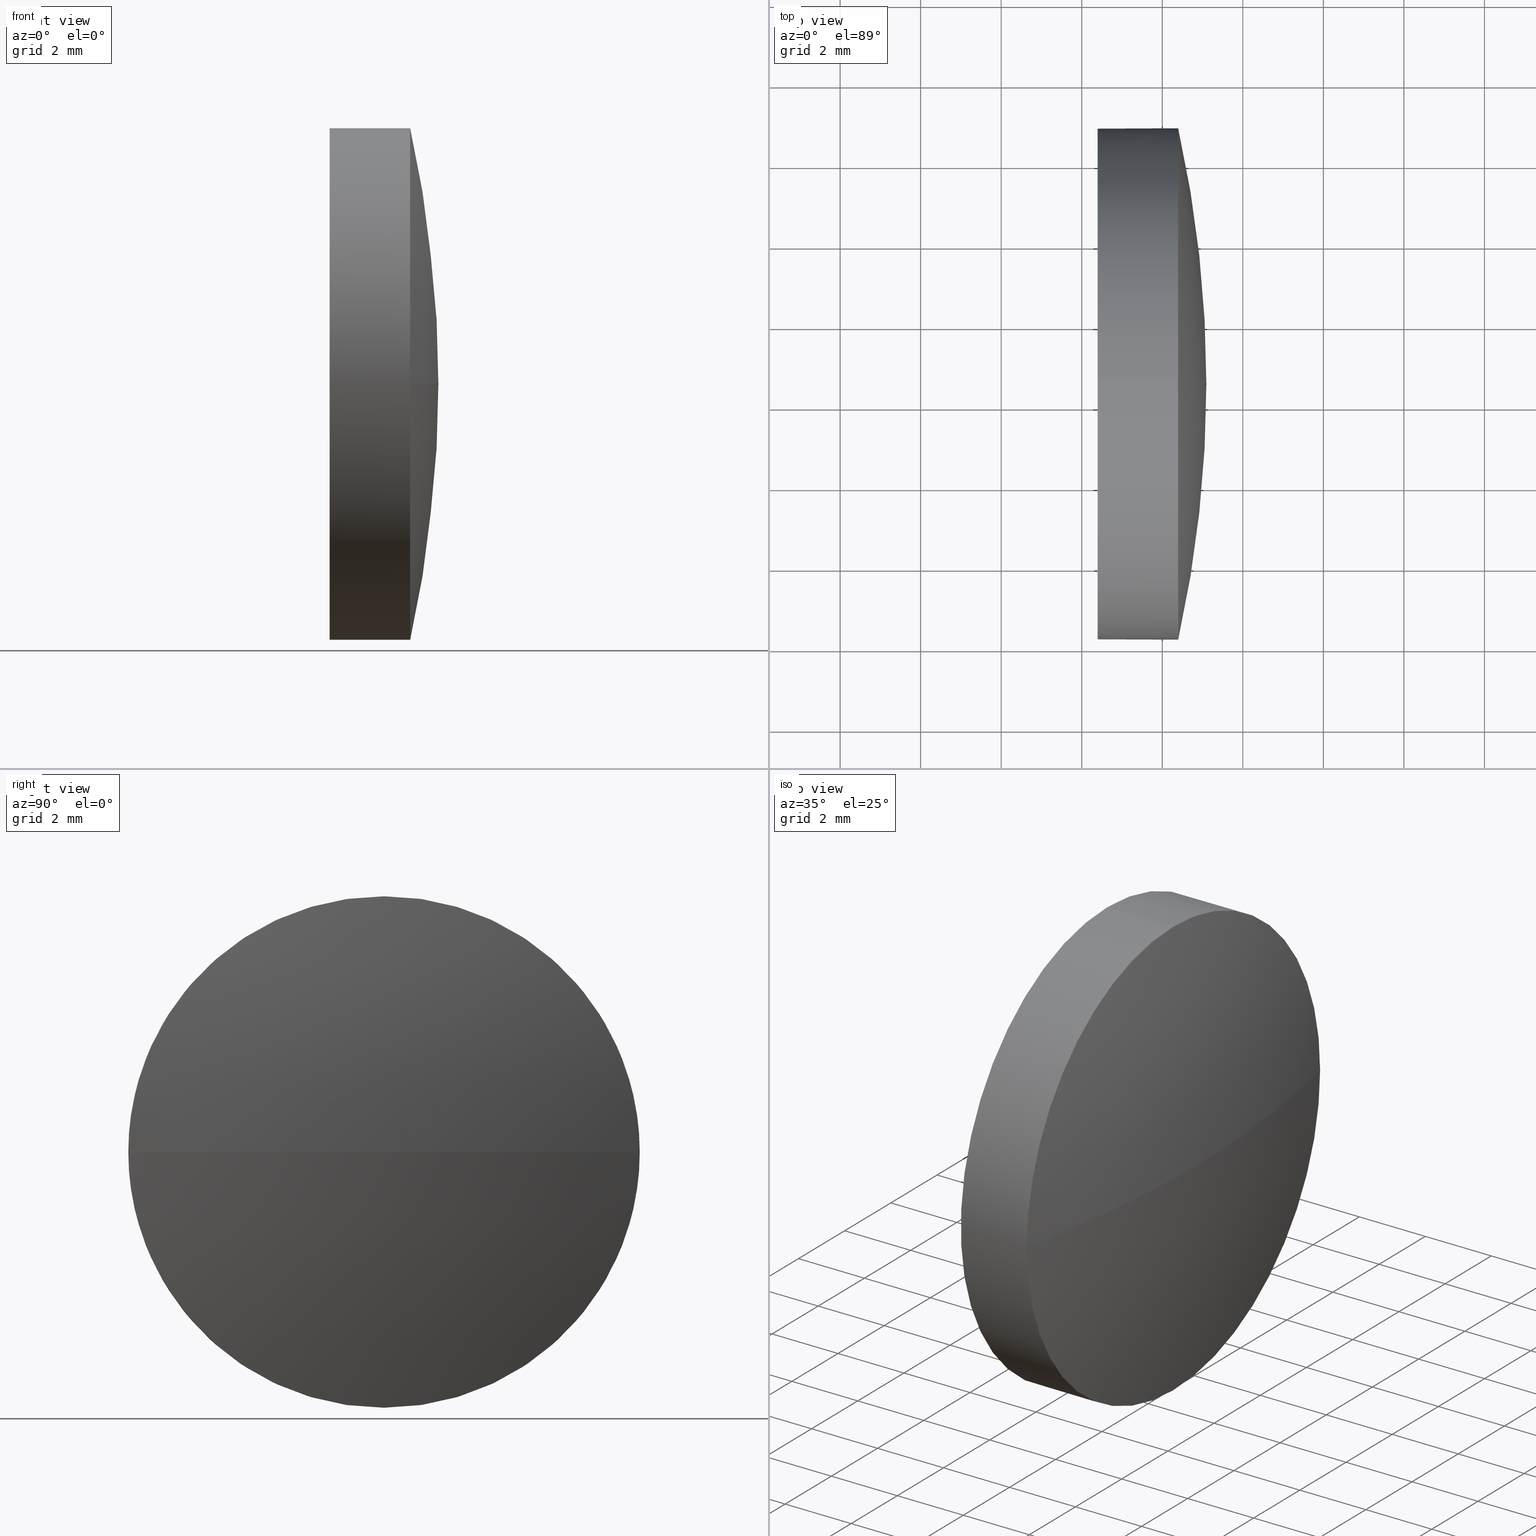
[diagram: canonical four-view strip — front | top / right | iso, engineering-drawing reading convention]
A machine part, canonical four-view strip (front | top / right | iso — engineering-drawing reading convention). The complete STEP part file that produces these views, byte-faithful:
ISO-10303-21;
HEADER;
FILE_DESCRIPTION (( 'STEP AP214' ),
    '1' );
FILE_NAME ('100456.STEP',
    '2019-06-11T01:30:40',
    ( '' ),
    ( '' ),
    'SwSTEP 2.0',
    'SolidWorks 2016',
    '' );
FILE_SCHEMA (( 'AUTOMOTIVE_DESIGN' ));
ENDSEC;

DATA;
#1 = EDGE_CURVE ( 'NONE', #74, #85, #34, .T. ) ;
#2 = CIRCLE ( 'NONE', #148, 6.349999999999994300 ) ;
#3 = CIRCLE ( 'NONE', #124, 6.349999999999994300 ) ;
#4 = DIRECTION ( 'NONE',  ( -1.000000000000000000, -0.0000000000000000000, -0.0000000000000000000 ) ) ;
#5 = CIRCLE ( 'NONE', #137, 6.349999999999994300 ) ;
#6 = EDGE_LOOP ( 'NONE', ( #37, #98 ) ) ;
#7 = EDGE_CURVE ( 'NONE', #129, #14, #152, .T. ) ;
#8 = CARTESIAN_POINT ( 'NONE',  ( 456.1343835801833400, 88.53423358317982700, 0.0000000000000000000 ) ) ;
#9 = UNCERTAINTY_MEASURE_WITH_UNIT (LENGTH_MEASURE( 1.000000000000000100E-005 ), #141, 'distance_accuracy_value', 'NONE');
#10 = CARTESIAN_POINT ( 'NONE',  ( 431.9431290117520900, 88.53423358317981200, 0.0000000000000000000 ) ) ;
#11 = CARTESIAN_POINT ( 'NONE',  ( 460.3949147260378300, 88.53423358317982700, 0.0000000000000000000 ) ) ;
#12 = DIRECTION ( 'NONE',  ( 0.0000000000000000000, 0.0000000000000000000, -1.000000000000000000 ) ) ;
#13 = DIRECTION ( 'NONE',  ( -1.000000000000000000, -0.0000000000000000000, -0.0000000000000000000 ) ) ;
#14 = VERTEX_POINT ( 'NONE', #61 ) ;
#15 = ORIENTED_EDGE ( 'NONE', *, *, #41, .T. ) ;
#16 = ORIENTED_EDGE ( 'NONE', *, *, #114, .F. ) ;
#17 = PRODUCT_DEFINITION_SHAPE ( 'NONE', 'NONE',  #178 ) ;
#18 = DIRECTION ( 'NONE',  ( -1.000000000000000000, -0.0000000000000000000, -0.0000000000000000000 ) ) ;
#19 = ORIENTED_EDGE ( 'NONE', *, *, #131, .F. ) ;
#20 = AXIS2_PLACEMENT_3D ( 'NONE', #64, #162, #50 ) ;
#21 = MECHANICAL_DESIGN_GEOMETRIC_PRESENTATION_REPRESENTATION (  '', ( #77 ), #172 ) ;
#22 = ADVANCED_FACE ( 'NONE', ( #81 ), #68, .T. ) ;
#23 = MANIFOLD_SOLID_BREP ( '��ת1', #52 ) ;
#24 = DIRECTION ( 'NONE',  ( -1.000000000000000000, -0.0000000000000000000, -0.0000000000000000000 ) ) ;
#25 = ADVANCED_FACE ( 'NONE', ( #88 ), #45, .T. ) ;
#26 = CYLINDRICAL_SURFACE ( 'NONE', #70, 6.349999999999994300 ) ;
#27 = DIRECTION ( 'NONE',  ( -0.0000000000000000000, 0.0000000000000000000, -1.000000000000000000 ) ) ;
#28 = DIRECTION ( 'NONE',  ( 0.0000000000000000000, 0.0000000000000000000, 1.000000000000000000 ) ) ;
#29 = COLOUR_RGB ( '',1.000000000000000000, 1.000000000000000000, 1.000000000000000000 ) ;
#30 = VERTEX_POINT ( 'NONE', #111 ) ;
#31 = DIRECTION ( 'NONE',  ( -1.000000000000000000, -0.0000000000000000000, -0.0000000000000000000 ) ) ;
#32 = EDGE_CURVE ( 'NONE', #135, #30, #176, .T. ) ;
#33 = AXIS2_PLACEMENT_3D ( 'NONE', #180, #18, #144 ) ;
#34 = LINE ( 'NONE', #146, #53 ) ;
#35 = SURFACE_SIDE_STYLE ('',( #123 ) ) ;
#36 = CARTESIAN_POINT ( 'NONE',  ( 456.1343835801833400, 88.53423358317982700, 6.349999999999994300 ) ) ;
#37 = ORIENTED_EDGE ( 'NONE', *, *, #164, .T. ) ;
#38 =( NAMED_UNIT ( * ) SI_UNIT ( $, .STERADIAN. ) SOLID_ANGLE_UNIT ( ) );
#39 = DIRECTION ( 'NONE',  ( -0.0000000000000000000, 0.0000000000000000000, 1.000000000000000000 ) ) ;
#40 = PRESENTATION_STYLE_ASSIGNMENT (( #154 ) ) ;
#41 = EDGE_CURVE ( 'NONE', #30, #14, #57, .T. ) ;
#42 =( GEOMETRIC_REPRESENTATION_CONTEXT ( 3 ) GLOBAL_UNCERTAINTY_ASSIGNED_CONTEXT ( ( #87 ) ) GLOBAL_UNIT_ASSIGNED_CONTEXT ( ( #140, #104, #38 ) ) REPRESENTATION_CONTEXT ( 'NONE', 'WORKASPACE' ) );
#43 = CARTESIAN_POINT ( 'NONE',  ( 431.9431290117520900, 88.53423358317981200, 0.0000000000000000000 ) ) ;
#44 = ADVANCED_FACE ( 'NONE', ( #62 ), #65, .T. ) ;
#45 = CYLINDRICAL_SURFACE ( 'NONE', #89, 6.349999999999994300 ) ;
#46 = CARTESIAN_POINT ( 'NONE',  ( 431.9431290117520900, 88.53423358317981200, 0.0000000000000000000 ) ) ;
#47 = CARTESIAN_POINT ( 'NONE',  ( 458.3949147260378300, 88.53423358317982700, 0.0000000000000000000 ) ) ;
#48 = EDGE_CURVE ( 'NONE', #129, #135, #166, .T. ) ;
#49 = AXIS2_PLACEMENT_3D ( 'NONE', #80, #159, #12 ) ;
#50 = DIRECTION ( 'NONE',  ( 0.0000000000000000000, 0.0000000000000000000, 1.000000000000000000 ) ) ;
#51 = ADVANCED_BREP_SHAPE_REPRESENTATION ( '100456', ( #23, #83 ), #42 ) ;
#52 = CLOSED_SHELL ( 'NONE', ( #184, #22, #44, #25, #109 ) ) ;
#53 = VECTOR ( 'NONE', #24, 1000.000000000000000 ) ;
#54 = ORIENTED_EDGE ( 'NONE', *, *, #48, .T. ) ;
#55 = AXIS2_PLACEMENT_3D ( 'NONE', #46, #95, #66 ) ;
#56 = PRODUCT_CONTEXT ( 'NONE', #142, 'mechanical' ) ;
#57 = CIRCLE ( 'NONE', #20, 6.349999999999994300 ) ;
#58 =( NAMED_UNIT ( * ) PLANE_ANGLE_UNIT ( ) SI_UNIT ( $, .RADIAN. ) );
#59 = FILL_AREA_STYLE_COLOUR ( '', #71 ) ;
#60 = ORIENTED_EDGE ( 'NONE', *, *, #114, .T. ) ;
#61 = CARTESIAN_POINT ( 'NONE',  ( 460.3949147260378300, 94.88423358317979300, 0.0000000000000000000 ) ) ;
#62 = FACE_OUTER_BOUND ( 'NONE', #125, .T. ) ;
#63 = PLANE ( 'NONE',  #49 ) ;
#64 = CARTESIAN_POINT ( 'NONE',  ( 460.3949147260378300, 88.53423358317982700, 0.0000000000000000000 ) ) ;
#65 = SPHERICAL_SURFACE ( 'NONE', #108, 29.15178571428574000 ) ;
#66 = DIRECTION ( 'NONE',  ( 0.0000000000000000000, 1.000000000000000000, 1.224646799147353200E-016 ) ) ;
#67 = MECHANICAL_DESIGN_GEOMETRIC_PRESENTATION_REPRESENTATION (  '', ( #76 ), #100 ) ;
#68 = SPHERICAL_SURFACE ( 'NONE', #82, 29.15178571428574000 ) ;
#69 = EDGE_CURVE ( 'NONE', #14, #74, #2, .T. ) ;
#70 = AXIS2_PLACEMENT_3D ( 'NONE', #72, #4, #126 ) ;
#71 = COLOUR_RGB ( '',1.000000000000000000, 1.000000000000000000, 1.000000000000000000 ) ;
#72 = CARTESIAN_POINT ( 'NONE',  ( 456.1343835801833400, 88.53423358317982700, 0.0000000000000000000 ) ) ;
#73 = CARTESIAN_POINT ( 'NONE',  ( 458.3949147260378300, 88.53423358317982700, 6.349999999999994300 ) ) ;
#74 = VERTEX_POINT ( 'NONE', #96 ) ;
#75 = CARTESIAN_POINT ( 'NONE',  ( 431.9431290117520900, 88.53423358317981200, 0.0000000000000000000 ) ) ;
#76 = STYLED_ITEM ( 'NONE', ( #84 ), #23 ) ;
#77 = STYLED_ITEM ( 'NONE', ( #40 ), #51 ) ;
#78 =( NAMED_UNIT ( * ) SI_UNIT ( $, .STERADIAN. ) SOLID_ANGLE_UNIT ( ) );
#79 = DIRECTION ( 'NONE',  ( -0.0000000000000000000, 0.0000000000000000000, -1.000000000000000000 ) ) ;
#80 = CARTESIAN_POINT ( 'NONE',  ( 458.3949147260378300, 88.53423358317982700, 0.0000000000000000000 ) ) ;
#81 = FACE_OUTER_BOUND ( 'NONE', #112, .T. ) ;
#82 = AXIS2_PLACEMENT_3D ( 'NONE', #75, #79, #182 ) ;
#83 = AXIS2_PLACEMENT_3D ( 'NONE', #179, #118, #127 ) ;
#84 = PRESENTATION_STYLE_ASSIGNMENT (( #120 ) ) ;
#85 = VERTEX_POINT ( 'NONE', #186 ) ;
#86 = AXIS2_PLACEMENT_3D ( 'NONE', #43, #39, #157 ) ;
#87 = UNCERTAINTY_MEASURE_WITH_UNIT (LENGTH_MEASURE( 1.000000000000000100E-005 ), #140, 'distance_accuracy_value', 'NONE');
#88 = FACE_OUTER_BOUND ( 'NONE', #91, .T. ) ;
#89 = AXIS2_PLACEMENT_3D ( 'NONE', #8, #173, #93 ) ;
#90 = PRODUCT_DEFINITION_FORMATION_WITH_SPECIFIED_SOURCE ( '�κ�', '', #163, .NOT_KNOWN. ) ;
#91 = EDGE_LOOP ( 'NONE', ( #115, #60, #181, #165, #19 ) ) ;
#92 = FILL_AREA_STYLE ('',( #106 ) ) ;
#93 = DIRECTION ( 'NONE',  ( 0.0000000000000000000, 0.0000000000000000000, 1.000000000000000000 ) ) ;
#94 = ORIENTED_EDGE ( 'NONE', *, *, #48, .F. ) ;
#95 = DIRECTION ( 'NONE',  ( 0.0000000000000000000, 1.224646799147353200E-016, -1.000000000000000000 ) ) ;
#96 = CARTESIAN_POINT ( 'NONE',  ( 460.3949147260378300, 88.53423358317982700, -6.349999999999994300 ) ) ;
#97 = ORIENTED_EDGE ( 'NONE', *, *, #41, .F. ) ;
#98 = ORIENTED_EDGE ( 'NONE', *, *, #131, .T. ) ;
#99 = ORIENTED_EDGE ( 'NONE', *, *, #69, .T. ) ;
#100 =( GEOMETRIC_REPRESENTATION_CONTEXT ( 3 ) GLOBAL_UNCERTAINTY_ASSIGNED_CONTEXT ( ( #138 ) ) GLOBAL_UNIT_ASSIGNED_CONTEXT ( ( #158, #130, #78 ) ) REPRESENTATION_CONTEXT ( 'NONE', 'WORKASPACE' ) );
#101 = ORIENTED_EDGE ( 'NONE', *, *, #69, .F. ) ;
#102 = AXIS2_PLACEMENT_3D ( 'NONE', #11, #13, #147 ) ;
#103 = LINE ( 'NONE', #36, #128 ) ;
#104 =( NAMED_UNIT ( * ) PLANE_ANGLE_UNIT ( ) SI_UNIT ( $, .RADIAN. ) );
#105 = APPLICATION_CONTEXT ( 'automotive_design' ) ;
#106 = FILL_AREA_STYLE_COLOUR ( '', #29 ) ;
#107 = SURFACE_SIDE_STYLE ('',( #116 ) ) ;
#108 = AXIS2_PLACEMENT_3D ( 'NONE', #10, #27, #174 ) ;
#109 = ADVANCED_FACE ( 'NONE', ( #143 ), #63, .F. ) ;
#110 = PRODUCT_RELATED_PRODUCT_CATEGORY ( 'part', '', ( #163 ) ) ;
#111 = CARTESIAN_POINT ( 'NONE',  ( 460.3949147260378300, 88.53423358317982700, 6.349999999999994300 ) ) ;
#112 = EDGE_LOOP ( 'NONE', ( #145, #54, #16, #101 ) ) ;
#113 = CARTESIAN_POINT ( 'NONE',  ( 460.3949147260378300, 88.53423358317982700, 0.0000000000000000000 ) ) ;
#114 = EDGE_CURVE ( 'NONE', #74, #135, #3, .T. ) ;
#115 = ORIENTED_EDGE ( 'NONE', *, *, #1, .F. ) ;
#116 = SURFACE_STYLE_FILL_AREA ( #92 ) ;
#117 = APPLICATION_PROTOCOL_DEFINITION ( 'draft international standard', 'automotive_design', 1998, #142 ) ;
#118 = DIRECTION ( 'NONE',  ( 0.0000000000000000000, 0.0000000000000000000, 1.000000000000000000 ) ) ;
#119 = EDGE_LOOP ( 'NONE', ( #99, #183, #139, #155, #15 ) ) ;
#120 = SURFACE_STYLE_USAGE ( .BOTH. , #107 ) ;
#121 = SHAPE_DEFINITION_REPRESENTATION ( #17, #51 ) ;
#122 = PRESENTATION_LAYER_ASSIGNMENT (  '', '', ( #76 ) ) ;
#123 = SURFACE_STYLE_FILL_AREA ( #169 ) ;
#124 = AXIS2_PLACEMENT_3D ( 'NONE', #150, #31, #132 ) ;
#125 = EDGE_LOOP ( 'NONE', ( #94, #134, #97, #171 ) ) ;
#126 = DIRECTION ( 'NONE',  ( 0.0000000000000000000, 0.0000000000000000000, 1.000000000000000000 ) ) ;
#127 = DIRECTION ( 'NONE',  ( 1.000000000000000000, 0.0000000000000000000, 0.0000000000000000000 ) ) ;
#128 = VECTOR ( 'NONE', #167, 1000.000000000000000 ) ;
#129 = VERTEX_POINT ( 'NONE', #161 ) ;
#130 =( NAMED_UNIT ( * ) PLANE_ANGLE_UNIT ( ) SI_UNIT ( $, .RADIAN. ) );
#131 = EDGE_CURVE ( 'NONE', #85, #185, #5, .T. ) ;
#132 = DIRECTION ( 'NONE',  ( 0.0000000000000000000, 0.0000000000000000000, 1.000000000000000000 ) ) ;
#133 = CARTESIAN_POINT ( 'NONE',  ( 460.3949147260378300, 82.18423358317983200, -7.776507174585661600E-016 ) ) ;
#134 = ORIENTED_EDGE ( 'NONE', *, *, #7, .T. ) ;
#135 = VERTEX_POINT ( 'NONE', #133 ) ;
#136 = DIRECTION ( 'NONE',  ( -1.000000000000000000, -0.0000000000000000000, -0.0000000000000000000 ) ) ;
#137 = AXIS2_PLACEMENT_3D ( 'NONE', #47, #136, #151 ) ;
#138 = UNCERTAINTY_MEASURE_WITH_UNIT (LENGTH_MEASURE( 1.000000000000000100E-005 ), #158, 'distance_accuracy_value', 'NONE');
#139 = ORIENTED_EDGE ( 'NONE', *, *, #164, .F. ) ;
#140 =( LENGTH_UNIT ( ) NAMED_UNIT ( * ) SI_UNIT ( .MILLI., .METRE. ) );
#141 =( LENGTH_UNIT ( ) NAMED_UNIT ( * ) SI_UNIT ( .MILLI., .METRE. ) );
#142 = APPLICATION_CONTEXT ( 'automotive_design' ) ;
#143 = FACE_OUTER_BOUND ( 'NONE', #6, .T. ) ;
#144 = DIRECTION ( 'NONE',  ( 0.0000000000000000000, 0.0000000000000000000, 1.000000000000000000 ) ) ;
#145 = ORIENTED_EDGE ( 'NONE', *, *, #7, .F. ) ;
#146 = CARTESIAN_POINT ( 'NONE',  ( 456.1343835801833400, 88.53423358317982700, -6.349999999999994300 ) ) ;
#147 = DIRECTION ( 'NONE',  ( 0.0000000000000000000, 0.0000000000000000000, 1.000000000000000000 ) ) ;
#148 = AXIS2_PLACEMENT_3D ( 'NONE', #113, #175, #28 ) ;
#149 = FACE_OUTER_BOUND ( 'NONE', #119, .T. ) ;
#150 = CARTESIAN_POINT ( 'NONE',  ( 460.3949147260378300, 88.53423358317982700, 0.0000000000000000000 ) ) ;
#151 = DIRECTION ( 'NONE',  ( 0.0000000000000000000, 0.0000000000000000000, 1.000000000000000000 ) ) ;
#152 = CIRCLE ( 'NONE', #86, 29.15178571428572600 ) ;
#153 = PRESENTATION_LAYER_ASSIGNMENT (  '', '', ( #77 ) ) ;
#154 = SURFACE_STYLE_USAGE ( .BOTH. , #35 ) ;
#155 = ORIENTED_EDGE ( 'NONE', *, *, #177, .F. ) ;
#156 = APPLICATION_PROTOCOL_DEFINITION ( 'draft international standard', 'automotive_design', 1998, #105 ) ;
#157 = DIRECTION ( 'NONE',  ( 1.000000000000000000, 0.0000000000000000000, 0.0000000000000000000 ) ) ;
#158 =( LENGTH_UNIT ( ) NAMED_UNIT ( * ) SI_UNIT ( .MILLI., .METRE. ) );
#159 = DIRECTION ( 'NONE',  ( 1.000000000000000000, 0.0000000000000000000, 0.0000000000000000000 ) ) ;
#160 = PRODUCT_DEFINITION_CONTEXT ( 'detailed design', #105, 'design' ) ;
#161 = CARTESIAN_POINT ( 'NONE',  ( 461.0949147260378100, 88.53423358317981200, 0.0000000000000000000 ) ) ;
#162 = DIRECTION ( 'NONE',  ( -1.000000000000000000, -0.0000000000000000000, -0.0000000000000000000 ) ) ;
#163 = PRODUCT ( '100456', '100456', '', ( #56 ) ) ;
#164 = EDGE_CURVE ( 'NONE', #185, #85, #168, .T. ) ;
#165 = ORIENTED_EDGE ( 'NONE', *, *, #177, .T. ) ;
#166 = CIRCLE ( 'NONE', #55, 29.15178571428574000 ) ;
#167 = DIRECTION ( 'NONE',  ( -1.000000000000000000, -0.0000000000000000000, -0.0000000000000000000 ) ) ;
#168 = CIRCLE ( 'NONE', #33, 6.349999999999994300 ) ;
#169 = FILL_AREA_STYLE ('',( #59 ) ) ;
#170 =( NAMED_UNIT ( * ) SI_UNIT ( $, .STERADIAN. ) SOLID_ANGLE_UNIT ( ) );
#171 = ORIENTED_EDGE ( 'NONE', *, *, #32, .F. ) ;
#172 =( GEOMETRIC_REPRESENTATION_CONTEXT ( 3 ) GLOBAL_UNCERTAINTY_ASSIGNED_CONTEXT ( ( #9 ) ) GLOBAL_UNIT_ASSIGNED_CONTEXT ( ( #141, #58, #170 ) ) REPRESENTATION_CONTEXT ( 'NONE', 'WORKASPACE' ) );
#173 = DIRECTION ( 'NONE',  ( -1.000000000000000000, -0.0000000000000000000, -0.0000000000000000000 ) ) ;
#174 = DIRECTION ( 'NONE',  ( 0.0000000000000000000, 1.000000000000000000, 0.0000000000000000000 ) ) ;
#175 = DIRECTION ( 'NONE',  ( -1.000000000000000000, -0.0000000000000000000, -0.0000000000000000000 ) ) ;
#176 = CIRCLE ( 'NONE', #102, 6.349999999999994300 ) ;
#177 = EDGE_CURVE ( 'NONE', #30, #185, #103, .T. ) ;
#178 = PRODUCT_DEFINITION ( 'δ֪', '', #90, #160 ) ;
#179 = CARTESIAN_POINT ( 'NONE',  ( 0.0000000000000000000, 0.0000000000000000000, 0.0000000000000000000 ) ) ;
#180 = CARTESIAN_POINT ( 'NONE',  ( 458.3949147260378300, 88.53423358317982700, 0.0000000000000000000 ) ) ;
#181 = ORIENTED_EDGE ( 'NONE', *, *, #32, .T. ) ;
#182 = DIRECTION ( 'NONE',  ( 0.0000000000000000000, 1.000000000000000000, 0.0000000000000000000 ) ) ;
#183 = ORIENTED_EDGE ( 'NONE', *, *, #1, .T. ) ;
#184 = ADVANCED_FACE ( 'NONE', ( #149 ), #26, .T. ) ;
#185 = VERTEX_POINT ( 'NONE', #73 ) ;
#186 = CARTESIAN_POINT ( 'NONE',  ( 458.3949147260378300, 88.53423358317982700, -6.349999999999994300 ) ) ;
ENDSEC;
END-ISO-10303-21;
